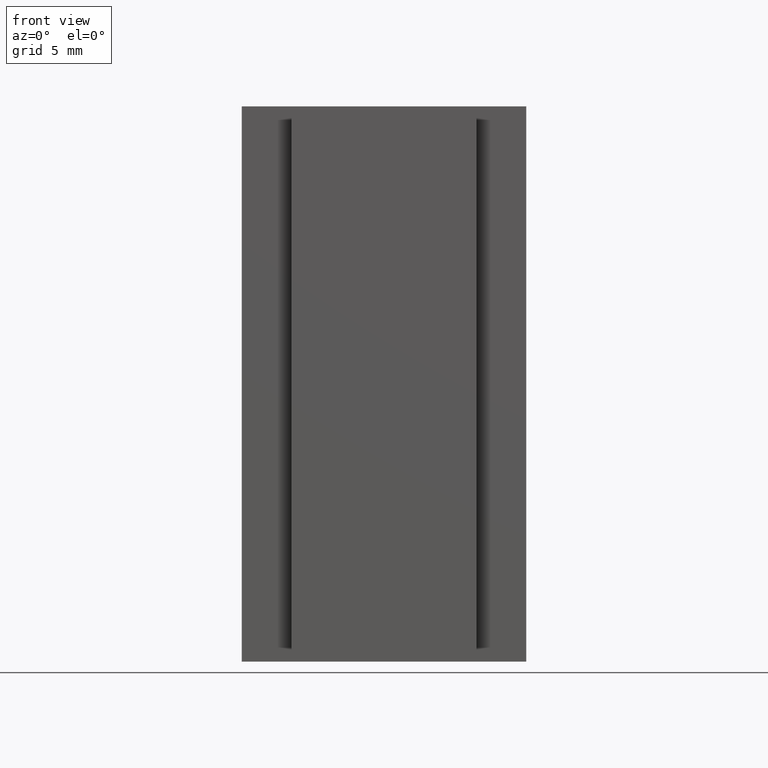
[diagram: clean part render]
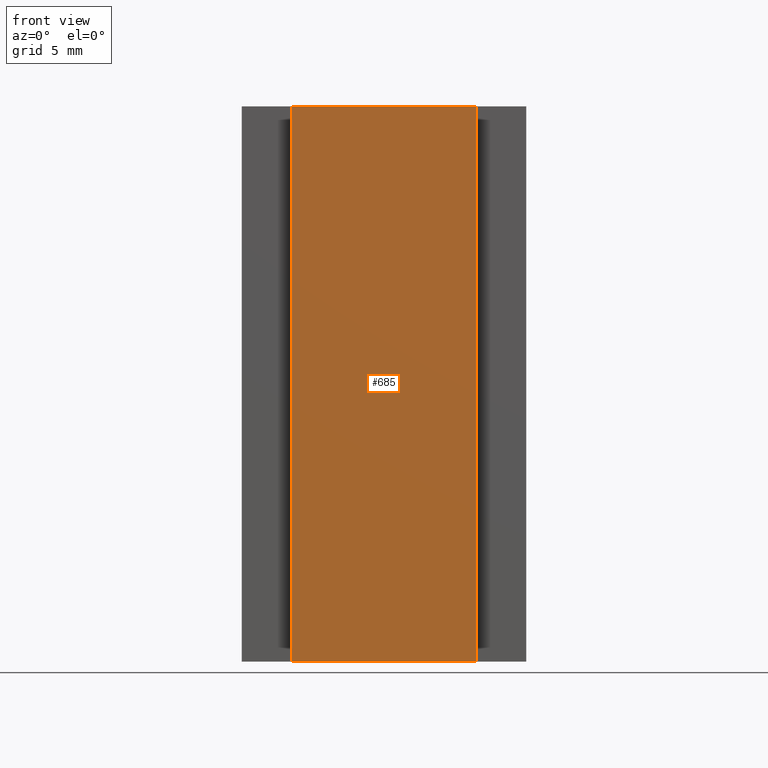
[diagram: same view with one face highlighted and labeled with its STEP entity id]
A machine part, front view. The second image highlights one B-rep face of the part: STEP entity #685.
In plain terms, the highlighted planar face has unit normal (0, -1, 0).
Its self-contained STEP definition (entity closure, byte-faithful):
#56=PLANE('',#820);
#89=FACE_OUTER_BOUND('',#136,.T.);
#136=EDGE_LOOP('',(#553,#554,#555,#556));
#194=LINE('',#1312,#239);
#200=LINE('',#1324,#245);
#202=LINE('',#1328,#247);
#203=LINE('',#1329,#248);
#239=VECTOR('',#955,10.);
#245=VECTOR('',#963,10.);
#247=VECTOR('',#967,10.);
#248=VECTOR('',#968,10.);
#339=VERTEX_POINT('',#1309);
#340=VERTEX_POINT('',#1311);
#345=VERTEX_POINT('',#1322);
#346=VERTEX_POINT('',#1327);
#414=EDGE_CURVE('',#340,#339,#194,.T.);
#420=EDGE_CURVE('',#345,#339,#200,.T.);
#422=EDGE_CURVE('',#345,#346,#202,.T.);
#423=EDGE_CURVE('',#346,#340,#203,.T.);
#553=ORIENTED_EDGE('',*,*,#422,.T.);
#554=ORIENTED_EDGE('',*,*,#423,.T.);
#555=ORIENTED_EDGE('',*,*,#414,.T.);
#556=ORIENTED_EDGE('',*,*,#420,.F.);
#685=ADVANCED_FACE('',(#89),#56,.T.);
#820=AXIS2_PLACEMENT_3D('',#1326,#965,#966);
#955=DIRECTION('',(1.,0.,0.));
#963=DIRECTION('',(0.,0.,-1.));
#965=DIRECTION('center_axis',(0.,-1.,0.));
#966=DIRECTION('ref_axis',(0.,0.,-1.));
#967=DIRECTION('',(-1.,0.,0.));
#968=DIRECTION('',(0.,0.,-1.));
#1309=CARTESIAN_POINT('',(4.,0.,-12.));
#1311=CARTESIAN_POINT('',(-4.,0.,-12.));
#1312=CARTESIAN_POINT('',(4.,0.,-12.));
#1322=CARTESIAN_POINT('',(4.,0.,12.));
#1324=CARTESIAN_POINT('',(4.,0.,0.));
#1326=CARTESIAN_POINT('Origin',(4.,0.,0.));
#1327=CARTESIAN_POINT('',(-4.,0.,12.));
#1328=CARTESIAN_POINT('',(4.,0.,12.));
#1329=CARTESIAN_POINT('',(-4.,0.,0.));